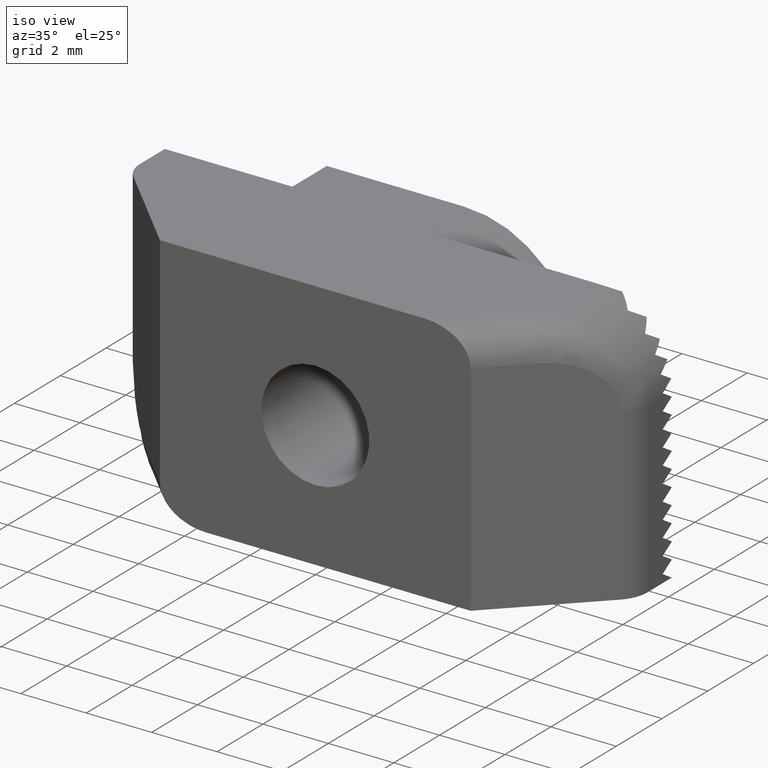
[diagram: clean part render]
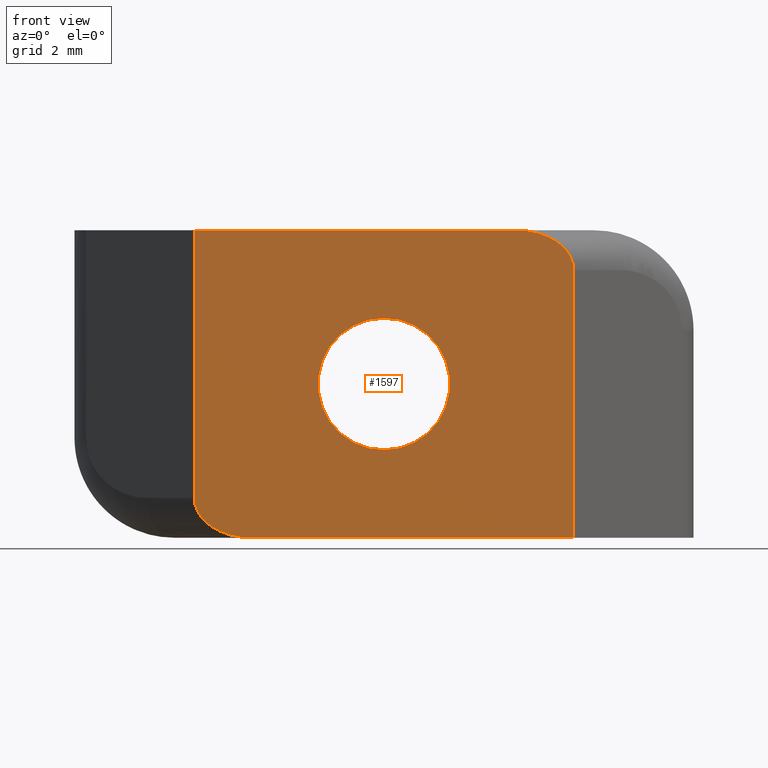
[diagram: tour spotlight — one face highlighted and labeled with its STEP entity id]
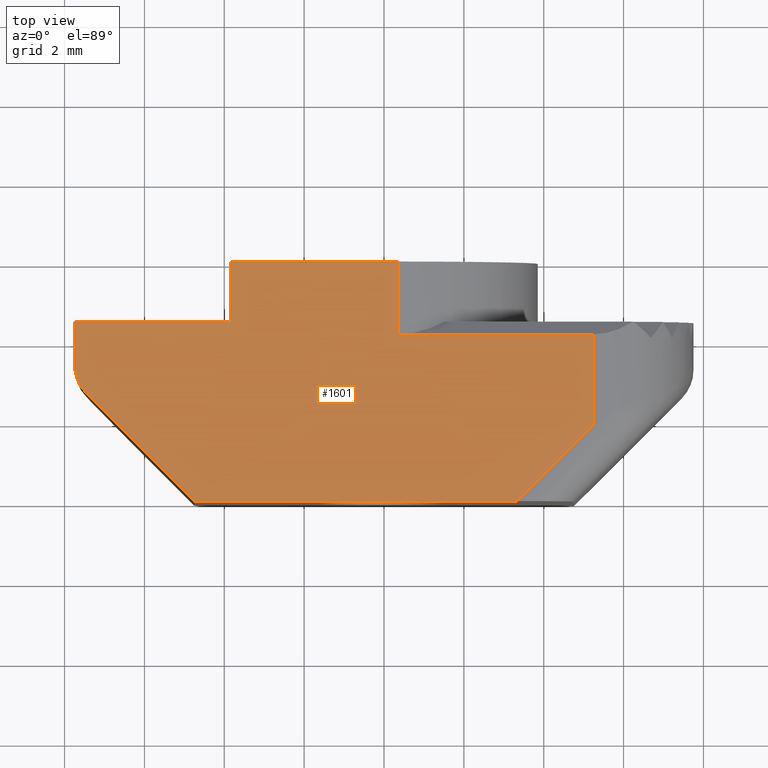
[diagram: tour spotlight — one face highlighted and labeled with its STEP entity id]
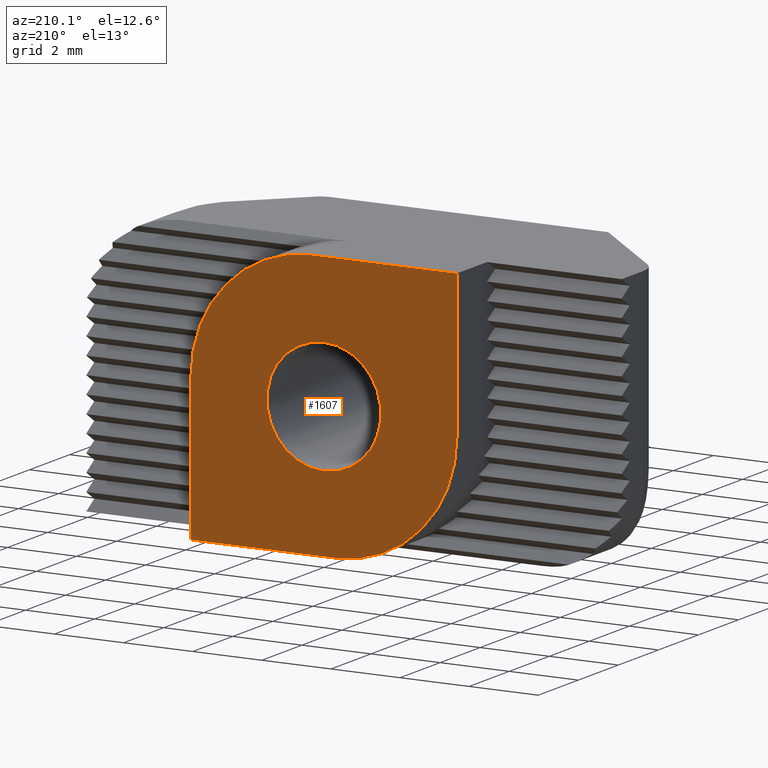
[diagram: tour spotlight — one face highlighted and labeled with its STEP entity id]
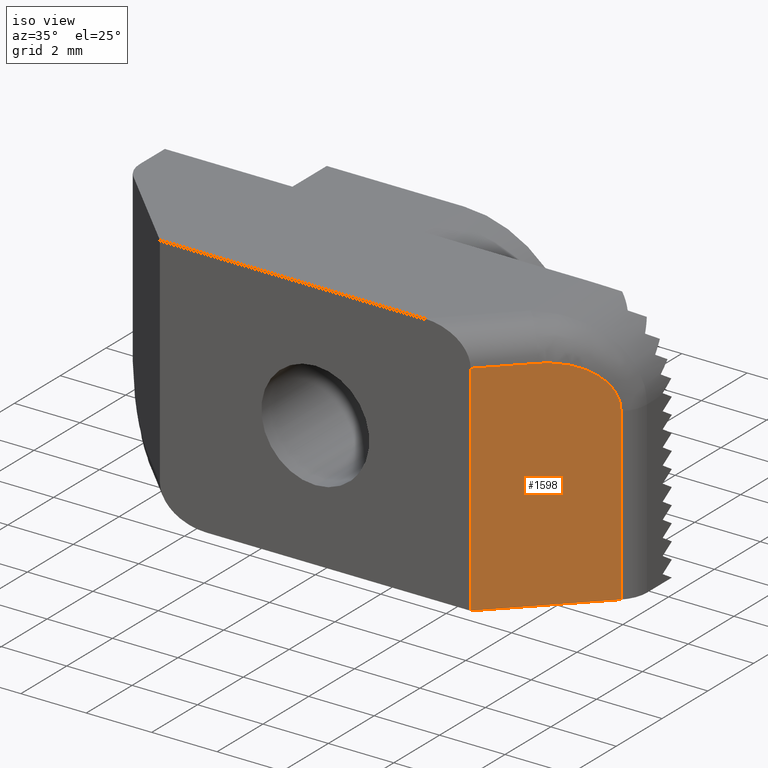
[diagram: tour spotlight — one face highlighted and labeled with its STEP entity id]
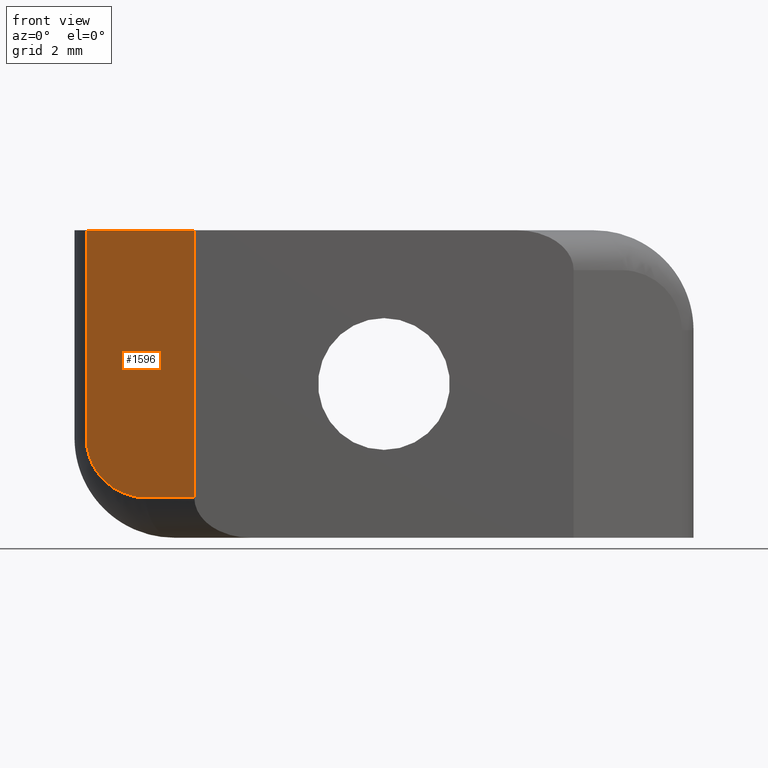
[diagram: tour spotlight — one face highlighted and labeled with its STEP entity id]
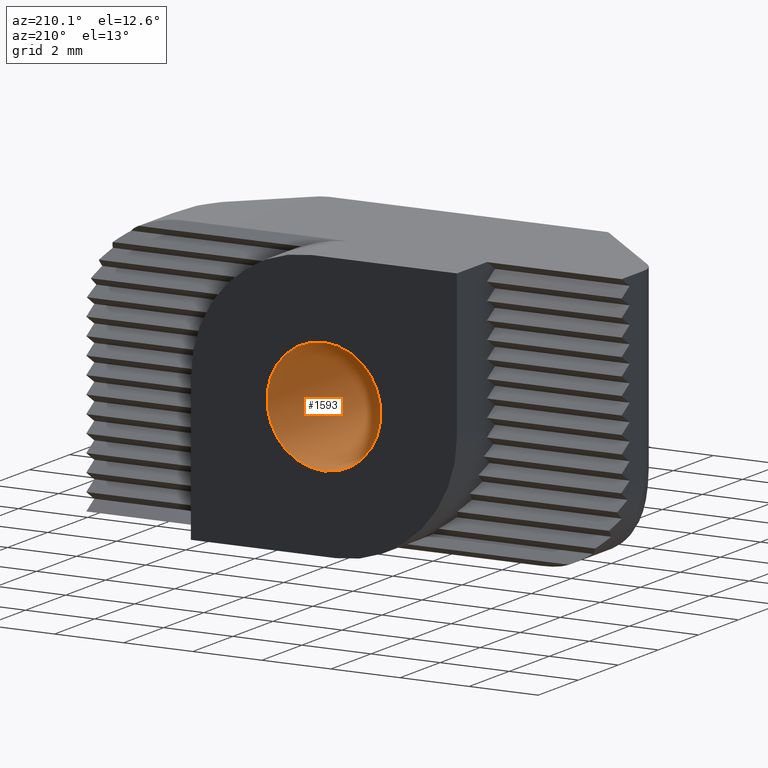
[diagram: tour spotlight — one face highlighted and labeled with its STEP entity id]
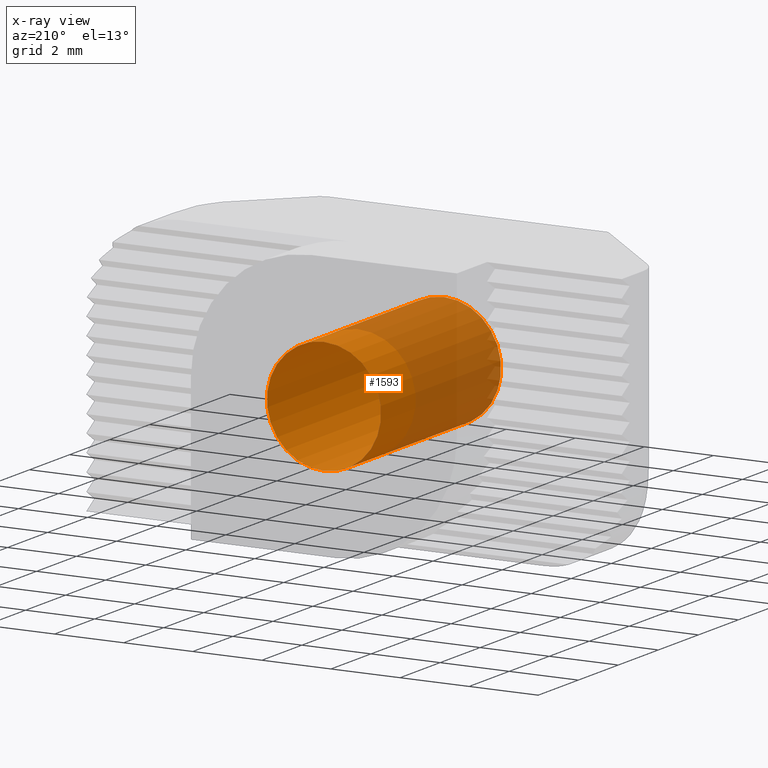
[diagram: x-ray of the same camera — body ghosted, this tour face saturated]
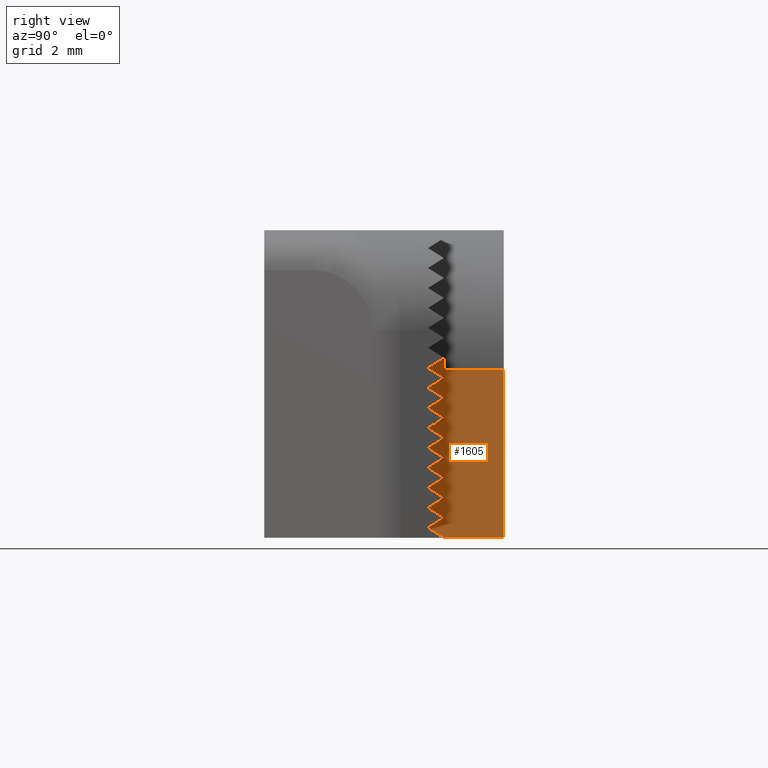
[diagram: tour spotlight — one face highlighted and labeled with its STEP entity id]
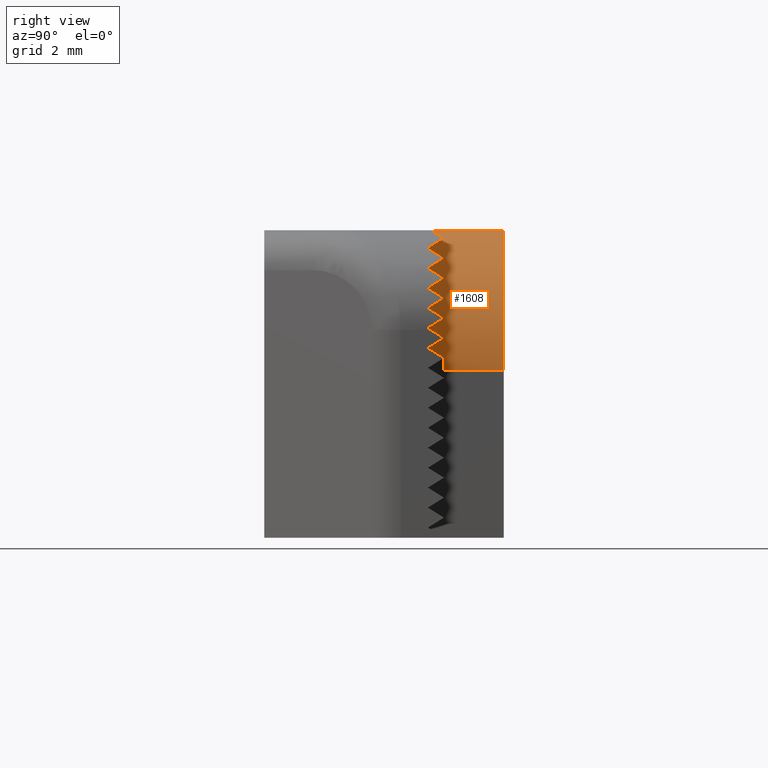
[diagram: tour spotlight — one face highlighted and labeled with its STEP entity id]
A machine part: a face-by-face anatomy tour. The part has 85 B-rep faces; the first image is the clean iso view, then the 8 largest visible faces are spotlighted one at a time (largest first), each with its STEP entity span.

Face 1 — front view, entity #1597. In plain terms, the highlighted planar face has unit normal (-0, 1, 0).
Definition (entity closure, byte-faithful):
#19=FACE_BOUND('',#237,.T.);
#21=ELLIPSE('',#1709,1.41421356237308,0.999999999999987);
#22=ELLIPSE('',#1710,1.41421356237295,0.999999999999897);
#76=PLANE('',#1708);
#151=FACE_OUTER_BOUND('',#236,.T.);
#236=EDGE_LOOP('',(#1111,#1112,#1113,#1114,#1115,#1116));
#237=EDGE_LOOP('',(#1117,#1118));
#327=LINE('',#2365,#504);
#328=LINE('',#2370,#505);
#329=LINE('',#2372,#506);
#330=LINE('',#2375,#507);
#504=VECTOR('',#1875,1000.);
#505=VECTOR('',#1880,1000.);
#506=VECTOR('',#1881,1000.);
#507=VECTOR('',#1884,1000.);
#673=CIRCLE('',#1699,1.65);
#674=CIRCLE('',#1700,1.65);
#687=VERTEX_POINT('',#2320);
#688=VERTEX_POINT('',#2321);
#698=VERTEX_POINT('',#2345);
#701=VERTEX_POINT('',#2363);
#702=VERTEX_POINT('',#2367);
#703=VERTEX_POINT('',#2369);
#704=VERTEX_POINT('',#2371);
#705=VERTEX_POINT('',#2373);
#849=EDGE_CURVE('',#687,#688,#673,.T.);
#850=EDGE_CURVE('',#688,#687,#674,.T.);
#864=EDGE_CURVE('',#698,#701,#327,.T.);
#865=EDGE_CURVE('',#701,#702,#21,.T.);
#866=EDGE_CURVE('',#702,#703,#328,.T.);
#867=EDGE_CURVE('',#704,#703,#329,.T.);
#868=EDGE_CURVE('',#704,#705,#22,.T.);
#869=EDGE_CURVE('',#698,#705,#330,.T.);
#1111=ORIENTED_EDGE('',*,*,#864,.T.);
#1112=ORIENTED_EDGE('',*,*,#865,.T.);
#1113=ORIENTED_EDGE('',*,*,#866,.T.);
#1114=ORIENTED_EDGE('',*,*,#867,.F.);
#1115=ORIENTED_EDGE('',*,*,#868,.T.);
#1116=ORIENTED_EDGE('',*,*,#869,.F.);
#1117=ORIENTED_EDGE('',*,*,#849,.T.);
#1118=ORIENTED_EDGE('',*,*,#850,.T.);
#1597=ADVANCED_FACE('',(#151,#19),#76,.F.);
#1699=AXIS2_PLACEMENT_3D('',#2322,#1849,#1850);
#1700=AXIS2_PLACEMENT_3D('',#2323,#1851,#1852);
#1708=AXIS2_PLACEMENT_3D('',#2366,#1876,#1877);
#1709=AXIS2_PLACEMENT_3D('',#2368,#1878,#1879);
#1710=AXIS2_PLACEMENT_3D('',#2374,#1882,#1883);
#1849=DIRECTION('center_axis',(0.,1.,0.));
#1850=DIRECTION('ref_axis',(0.,0.,1.));
#1851=DIRECTION('center_axis',(0.,1.,0.));
#1852=DIRECTION('ref_axis',(0.,0.,1.));
#1875=DIRECTION('',(0.,0.,-1.));
#1876=DIRECTION('center_axis',(-2.25074922955132E-48,1.,0.));
#1877=DIRECTION('ref_axis',(-1.,-2.25074922955132E-48,0.));
#1878=DIRECTION('center_axis',(5.23499117833775E-16,-1.,7.40339552330874E-16));
#1879=DIRECTION('ref_axis',(1.,5.23499117833765E-16,-1.32741586305294E-14));
#1880=DIRECTION('',(1.,2.25074922955132E-48,0.));
#1881=DIRECTION('',(0.,0.,-1.));
#1882=DIRECTION('center_axis',(-1.04699823566756E-15,-1.,-1.48067910466176E-15));
#1883=DIRECTION('ref_axis',(1.,-1.04699823566737E-15,-1.26546978944379E-13));
#1884=DIRECTION('',(1.,2.25074922955132E-48,0.));
#2320=CARTESIAN_POINT('',(-2.08500417785674E-16,0.,5.5));
#2321=CARTESIAN_POINT('',(-4.10567139644986E-16,0.,2.20000000000001));
#2322=CARTESIAN_POINT('Origin',(-2.08500417785674E-16,0.,3.85));
#2323=CARTESIAN_POINT('Origin',(-2.08500417785674E-16,0.,3.85));
#2345=CARTESIAN_POINT('',(-4.75,0.,7.7));
#2363=CARTESIAN_POINT('',(-4.75,0.,1.));
#2365=CARTESIAN_POINT('',(-4.75,0.,7.7));
#2366=CARTESIAN_POINT('Origin',(-4.75,0.,7.7));
#2367=CARTESIAN_POINT('',(-3.3357864376269,3.18304008593228E-48,0.));
#2368=CARTESIAN_POINT('Origin',(-3.33578643762692,7.40339552330858E-16,
0.999999999999987));
#2369=CARTESIAN_POINT('',(4.75,2.13821176807376E-47,0.));
#2370=CARTESIAN_POINT('',(-4.75,0.,0.));
#2371=CARTESIAN_POINT('',(4.75,2.13821176807376E-47,6.7));
#2372=CARTESIAN_POINT('',(4.75,2.13821176807376E-47,7.7));
#2373=CARTESIAN_POINT('',(3.3357864376269,1.81990775948053E-47,7.7));
#2374=CARTESIAN_POINT('Origin',(3.33578643762705,1.48067910466145E-15,6.7000000000001));
#2375=CARTESIAN_POINT('',(-4.75,0.,7.7));

Face 2 — top view, entity #1601. In plain terms, the highlighted planar face has unit normal (0, 0, 1).
Definition (entity closure, byte-faithful):
#80=PLANE('',#1714);
#155=FACE_OUTER_BOUND('',#241,.T.);
#241=EDGE_LOOP('',(#1172,#1173,#1174,#1175,#1176,#1177,#1178,#1179,#1180,
#1181,#1182));
#324=LINE('',#2346,#501);
#330=LINE('',#2375,#507);
#360=LINE('',#2452,#537);
#382=LINE('',#2497,#559);
#383=LINE('',#2499,#560);
#384=LINE('',#2501,#561);
#385=LINE('',#2503,#562);
#386=LINE('',#2505,#563);
#387=LINE('',#2507,#564);
#388=LINE('',#2508,#565);
#501=VECTOR('',#1872,1000.);
#507=VECTOR('',#1884,1000.);
#537=VECTOR('',#1920,1000.);
#559=VECTOR('',#1946,1000.);
#560=VECTOR('',#1947,1000.);
#561=VECTOR('',#1948,1000.);
#562=VECTOR('',#1949,1000.);
#563=VECTOR('',#1950,1000.);
#564=VECTOR('',#1951,1000.);
#565=VECTOR('',#1952,1000.);
#679=CIRCLE('',#1715,1.);
#697=VERTEX_POINT('',#2344);
#698=VERTEX_POINT('',#2345);
#705=VERTEX_POINT('',#2373);
#735=VERTEX_POINT('',#2449);
#736=VERTEX_POINT('',#2451);
#757=VERTEX_POINT('',#2496);
#758=VERTEX_POINT('',#2498);
#759=VERTEX_POINT('',#2500);
#760=VERTEX_POINT('',#2502);
#761=VERTEX_POINT('',#2504);
#762=VERTEX_POINT('',#2506);
#860=EDGE_CURVE('',#697,#698,#324,.T.);
#869=EDGE_CURVE('',#698,#705,#330,.T.);
#900=EDGE_CURVE('',#736,#735,#360,.T.);
#922=EDGE_CURVE('',#735,#697,#679,.T.);
#923=EDGE_CURVE('',#705,#757,#382,.T.);
#924=EDGE_CURVE('',#757,#758,#383,.T.);
#925=EDGE_CURVE('',#759,#758,#384,.T.);
#926=EDGE_CURVE('',#759,#760,#385,.T.);
#927=EDGE_CURVE('',#761,#760,#386,.T.);
#928=EDGE_CURVE('',#761,#762,#387,.T.);
#929=EDGE_CURVE('',#762,#736,#388,.T.);
#1172=ORIENTED_EDGE('',*,*,#900,.T.);
#1173=ORIENTED_EDGE('',*,*,#922,.T.);
#1174=ORIENTED_EDGE('',*,*,#860,.T.);
#1175=ORIENTED_EDGE('',*,*,#869,.T.);
#1176=ORIENTED_EDGE('',*,*,#923,.T.);
#1177=ORIENTED_EDGE('',*,*,#924,.T.);
#1178=ORIENTED_EDGE('',*,*,#925,.F.);
#1179=ORIENTED_EDGE('',*,*,#926,.T.);
#1180=ORIENTED_EDGE('',*,*,#927,.F.);
#1181=ORIENTED_EDGE('',*,*,#928,.T.);
#1182=ORIENTED_EDGE('',*,*,#929,.T.);
#1601=ADVANCED_FACE('',(#155),#80,.T.);
#1714=AXIS2_PLACEMENT_3D('',#2494,#1942,#1943);
#1715=AXIS2_PLACEMENT_3D('',#2495,#1944,#1945);
#1872=DIRECTION('',(0.707106781186548,-0.707106781186547,0.));
#1884=DIRECTION('',(1.,2.25074922955132E-48,0.));
#1920=DIRECTION('',(0.,-1.,0.));
#1942=DIRECTION('center_axis',(0.,0.,1.));
#1943=DIRECTION('ref_axis',(1.,0.,0.));
#1944=DIRECTION('center_axis',(0.,0.,1.));
#1945=DIRECTION('ref_axis',(1.,0.,0.));
#1946=DIRECTION('',(0.707106781186548,0.707106781186548,0.));
#1947=DIRECTION('',(0.,1.,0.));
#1948=DIRECTION('',(1.,0.,0.));
#1949=DIRECTION('',(0.,1.,0.));
#1950=DIRECTION('',(1.,0.,0.));
#1951=DIRECTION('',(0.,-1.,0.));
#1952=DIRECTION('',(-1.,0.,0.));
#2344=CARTESIAN_POINT('',(-7.45710678118655,2.70710678118655,7.7));
#2345=CARTESIAN_POINT('',(-4.75,0.,7.7));
#2346=CARTESIAN_POINT('',(-7.75,3.,7.7));
#2373=CARTESIAN_POINT('',(3.3357864376269,1.81990775948053E-47,7.7));
#2375=CARTESIAN_POINT('',(-4.75,0.,7.7));
#2449=CARTESIAN_POINT('',(-7.75,3.41421356237309,7.7));
#2451=CARTESIAN_POINT('',(-7.75,4.5,7.7));
#2452=CARTESIAN_POINT('',(-7.75,4.5,7.7));
#2494=CARTESIAN_POINT('Origin',(8.67361737988404E-16,-4.75,7.7));
#2495=CARTESIAN_POINT('Origin',(-6.75,3.41421356237309,7.7));
#2496=CARTESIAN_POINT('',(5.25,1.9142135623731,7.7));
#2497=CARTESIAN_POINT('',(4.54289321881345,1.20710678118655,7.7));
#2498=CARTESIAN_POINT('',(5.25,4.18,7.7));
#2499=CARTESIAN_POINT('',(5.25,4.5,7.7));
#2500=CARTESIAN_POINT('',(0.349999999999999,4.18,7.7));
#2501=CARTESIAN_POINT('',(8.67361737988404E-16,4.18,7.7));
#2502=CARTESIAN_POINT('',(0.35,6.,7.7));
#2503=CARTESIAN_POINT('',(0.349999999999999,6.,7.7));
#2504=CARTESIAN_POINT('',(-3.85,6.,7.7));
#2505=CARTESIAN_POINT('',(3.85,6.,7.7));
#2506=CARTESIAN_POINT('',(-3.85,4.5,7.7));
#2507=CARTESIAN_POINT('',(-3.85,6.,7.7));
#2508=CARTESIAN_POINT('',(7.75,4.5,7.7));

Face 3 — auxiliary view, entity #1607. In plain terms, the highlighted planar face has unit normal (0, -1, 0).
Definition (entity closure, byte-faithful):
#20=FACE_BOUND('',#248,.T.);
#84=PLANE('',#1744);
#161=FACE_OUTER_BOUND('',#247,.T.);
#247=EDGE_LOOP('',(#1266,#1267,#1268,#1269,#1270,#1271));
#248=EDGE_LOOP('',(#1272,#1273));
#386=LINE('',#2505,#563);
#393=LINE('',#2519,#570);
#396=LINE('',#2590,#573);
#416=LINE('',#2629,#593);
#563=VECTOR('',#1950,1000.);
#570=VECTOR('',#1959,1000.);
#573=VECTOR('',#2014,1000.);
#593=VECTOR('',#2036,1000.);
#675=CIRCLE('',#1701,1.64999999999999);
#676=CIRCLE('',#1702,1.64999999999999);
#681=CIRCLE('',#1745,3.5);
#682=CIRCLE('',#1746,3.5);
#689=VERTEX_POINT('',#2324);
#690=VERTEX_POINT('',#2326);
#760=VERTEX_POINT('',#2502);
#761=VERTEX_POINT('',#2504);
#766=VERTEX_POINT('',#2516);
#767=VERTEX_POINT('',#2518);
#789=VERTEX_POINT('',#2589);
#807=VERTEX_POINT('',#2628);
#852=EDGE_CURVE('',#689,#690,#675,.T.);
#853=EDGE_CURVE('',#690,#689,#676,.T.);
#927=EDGE_CURVE('',#761,#760,#386,.T.);
#934=EDGE_CURVE('',#767,#766,#393,.T.);
#962=EDGE_CURVE('',#789,#767,#396,.T.);
#982=EDGE_CURVE('',#807,#761,#416,.T.);
#1002=EDGE_CURVE('',#760,#789,#681,.T.);
#1003=EDGE_CURVE('',#766,#807,#682,.T.);
#1266=ORIENTED_EDGE('',*,*,#927,.T.);
#1267=ORIENTED_EDGE('',*,*,#1002,.T.);
#1268=ORIENTED_EDGE('',*,*,#962,.T.);
#1269=ORIENTED_EDGE('',*,*,#934,.T.);
#1270=ORIENTED_EDGE('',*,*,#1003,.T.);
#1271=ORIENTED_EDGE('',*,*,#982,.T.);
#1272=ORIENTED_EDGE('',*,*,#853,.F.);
#1273=ORIENTED_EDGE('',*,*,#852,.F.);
#1607=ADVANCED_FACE('',(#161,#20),#84,.F.);
#1701=AXIS2_PLACEMENT_3D('',#2327,#1854,#1855);
#1702=AXIS2_PLACEMENT_3D('',#2328,#1856,#1857);
#1744=AXIS2_PLACEMENT_3D('',#2666,#2056,#2057);
#1745=AXIS2_PLACEMENT_3D('',#2667,#2058,#2059);
#1746=AXIS2_PLACEMENT_3D('',#2668,#2060,#2061);
#1854=DIRECTION('center_axis',(0.,1.,0.));
#1855=DIRECTION('ref_axis',(0.,0.,1.));
#1856=DIRECTION('center_axis',(0.,1.,0.));
#1857=DIRECTION('ref_axis',(0.,0.,1.));
#1950=DIRECTION('',(1.,0.,0.));
#1959=DIRECTION('',(-1.,0.,0.));
#2014=DIRECTION('',(2.25288763113871E-16,0.,-1.));
#2036=DIRECTION('',(2.25288763113871E-16,0.,1.));
#2056=DIRECTION('center_axis',(0.,-1.,0.));
#2057=DIRECTION('ref_axis',(0.,0.,-1.));
#2058=DIRECTION('center_axis',(0.,1.,0.));
#2059=DIRECTION('ref_axis',(0.,0.,-1.));
#2060=DIRECTION('center_axis',(0.,1.,0.));
#2061=DIRECTION('ref_axis',(0.,0.,-1.));
#2324=CARTESIAN_POINT('',(-4.10567139644986E-16,6.,2.20000000000001));
#2326=CARTESIAN_POINT('',(-2.08500417785674E-16,6.,5.49999999999999));
#2327=CARTESIAN_POINT('Origin',(-2.08500417785674E-16,6.,3.85));
#2328=CARTESIAN_POINT('Origin',(-2.08500417785674E-16,6.,3.85));
#2502=CARTESIAN_POINT('',(0.35,6.,7.7));
#2504=CARTESIAN_POINT('',(-3.85,6.,7.7));
#2505=CARTESIAN_POINT('',(3.85,6.,7.7));
#2516=CARTESIAN_POINT('',(-0.349999999999998,6.,8.20513355428727E-16));
#2518=CARTESIAN_POINT('',(3.85,6.,8.20513355428727E-16));
#2519=CARTESIAN_POINT('',(3.85,6.,8.20513355428727E-16));
#2589=CARTESIAN_POINT('',(3.85,6.,4.2));
#2590=CARTESIAN_POINT('',(3.85,6.,8.20513355428727E-16));
#2628=CARTESIAN_POINT('',(-3.85,6.,3.5));
#2629=CARTESIAN_POINT('',(-3.85,6.,8.20513355428727E-16));
#2666=CARTESIAN_POINT('Origin',(3.85,6.,7.7));
#2667=CARTESIAN_POINT('Origin',(0.349999999999999,6.,4.2));
#2668=CARTESIAN_POINT('Origin',(-0.349999999999999,6.,3.5));

Face 4 — iso view, entity #1598. In plain terms, the highlighted planar face has unit normal (-0.7071, 0.7071, 0).
Definition (entity closure, byte-faithful):
#72=B_SPLINE_CURVE_WITH_KNOTS('',3,(#2382,#2383,#2384,#2385,#2386,#2387,
#2388,#2389,#2390,#2391,#2392,#2393,#2394),.UNSPECIFIED.,.F.,.F.,(4,3,3,
3,4),(3.14159265358979,3.53429173528852,3.92699081698724,4.31968989868597,
4.71238898038469),.UNSPECIFIED.);
#77=PLANE('',#1711);
#152=FACE_OUTER_BOUND('',#238,.T.);
#238=EDGE_LOOP('',(#1119,#1120,#1121,#1122,#1123));
#329=LINE('',#2372,#506);
#331=LINE('',#2378,#508);
#332=LINE('',#2380,#509);
#333=LINE('',#2395,#510);
#506=VECTOR('',#1881,1000.);
#508=VECTOR('',#1887,1000.);
#509=VECTOR('',#1888,1000.);
#510=VECTOR('',#1889,1000.);
#703=VERTEX_POINT('',#2369);
#704=VERTEX_POINT('',#2371);
#706=VERTEX_POINT('',#2377);
#707=VERTEX_POINT('',#2379);
#708=VERTEX_POINT('',#2381);
#867=EDGE_CURVE('',#704,#703,#329,.T.);
#870=EDGE_CURVE('',#703,#706,#331,.T.);
#871=EDGE_CURVE('',#706,#707,#332,.T.);
#872=EDGE_CURVE('',#707,#708,#72,.T.);
#873=EDGE_CURVE('',#708,#704,#333,.T.);
#1119=ORIENTED_EDGE('',*,*,#870,.T.);
#1120=ORIENTED_EDGE('',*,*,#871,.T.);
#1121=ORIENTED_EDGE('',*,*,#872,.T.);
#1122=ORIENTED_EDGE('',*,*,#873,.T.);
#1123=ORIENTED_EDGE('',*,*,#867,.T.);
#1598=ADVANCED_FACE('',(#152),#77,.F.);
#1711=AXIS2_PLACEMENT_3D('',#2376,#1885,#1886);
#1881=DIRECTION('',(0.,0.,-1.));
#1885=DIRECTION('center_axis',(-0.707106781186547,0.707106781186548,0.));
#1886=DIRECTION('ref_axis',(-0.707106781186548,-0.707106781186547,0.));
#1887=DIRECTION('',(0.707106781186548,0.707106781186547,0.));
#1888=DIRECTION('',(0.,0.,1.));
#1889=DIRECTION('',(-0.707106781186548,-0.707106781186547,0.));
#2369=CARTESIAN_POINT('',(4.75,2.13821176807376E-47,0.));
#2371=CARTESIAN_POINT('',(4.75,2.13821176807376E-47,6.7));
#2372=CARTESIAN_POINT('',(4.75,2.13821176807376E-47,7.7));
#2376=CARTESIAN_POINT('Origin',(4.75,2.13821176807376E-47,7.7));
#2377=CARTESIAN_POINT('',(7.45710678118655,2.70710678118655,0.));
#2378=CARTESIAN_POINT('',(4.75,2.13821176807376E-47,0.));
#2379=CARTESIAN_POINT('',(7.45710678118655,2.70710678118655,5.2));
#2380=CARTESIAN_POINT('',(7.45710678118655,2.70710678118655,7.7));
#2381=CARTESIAN_POINT('',(5.95710678118655,1.20710678118655,6.7));
#2382=CARTESIAN_POINT('Ctrl Pts',(7.45710678118655,2.70710678118655,5.2));
#2383=CARTESIAN_POINT('Ctrl Pts',(7.45710678117198,2.70710678117198,5.396384933334));
#2384=CARTESIAN_POINT('Ctrl Pts',(7.41806579133411,2.66806579133411,5.59262183825967));
#2385=CARTESIAN_POINT('Ctrl Pts',(7.34292607995348,2.59292607995348,5.77402514854764));
#2386=CARTESIAN_POINT('Ctrl Pts',(7.26778636857285,2.51778636857285,5.95542845883561));
#2387=CARTESIAN_POINT('Ctrl Pts',(7.15660703792746,2.40660703792746,6.12182008681863));
#2388=CARTESIAN_POINT('Ctrl Pts',(7.01776695296637,2.26776695296637,6.26066017177982));
#2389=CARTESIAN_POINT('Ctrl Pts',(6.87892686800528,2.12892686800528,6.39950025674101));
#2390=CARTESIAN_POINT('Ctrl Pts',(6.71253524449344,1.96253524449344,6.51067958553414));
#2391=CARTESIAN_POINT('Ctrl Pts',(6.53113192973418,1.78113192973418,6.58581929876693));
#2392=CARTESIAN_POINT('Ctrl Pts',(6.34972861497493,1.59972861497493,6.66095901199972));
#2393=CARTESIAN_POINT('Ctrl Pts',(6.15349171787875,1.40349171787875,6.69999999999506));
#2394=CARTESIAN_POINT('Ctrl Pts',(5.95710678118655,1.20710678118655,6.7));
#2395=CARTESIAN_POINT('',(4.75,5.42101086242752E-16,6.7));

Face 5 — front view, entity #1596. In plain terms, the highlighted planar face has unit normal (0.7071, 0.7071, 0).
Definition (entity closure, byte-faithful):
#71=B_SPLINE_CURVE_WITH_KNOTS('',3,(#2350,#2351,#2352,#2353,#2354,#2355,
#2356,#2357,#2358,#2359,#2360,#2361,#2362),.UNSPECIFIED.,.F.,.F.,(4,3,3,
3,4),(3.14159265358979,3.53429173528852,3.92699081698724,4.31968989868597,
4.71238898038469),.UNSPECIFIED.);
#75=PLANE('',#1707);
#150=FACE_OUTER_BOUND('',#235,.T.);
#235=EDGE_LOOP('',(#1106,#1107,#1108,#1109,#1110));
#324=LINE('',#2346,#501);
#325=LINE('',#2348,#502);
#326=LINE('',#2364,#503);
#327=LINE('',#2365,#504);
#501=VECTOR('',#1872,1000.);
#502=VECTOR('',#1873,1000.);
#503=VECTOR('',#1874,1000.);
#504=VECTOR('',#1875,1000.);
#697=VERTEX_POINT('',#2344);
#698=VERTEX_POINT('',#2345);
#699=VERTEX_POINT('',#2347);
#700=VERTEX_POINT('',#2349);
#701=VERTEX_POINT('',#2363);
#860=EDGE_CURVE('',#697,#698,#324,.T.);
#861=EDGE_CURVE('',#697,#699,#325,.T.);
#862=EDGE_CURVE('',#699,#700,#71,.T.);
#863=EDGE_CURVE('',#700,#701,#326,.T.);
#864=EDGE_CURVE('',#698,#701,#327,.T.);
#1106=ORIENTED_EDGE('',*,*,#860,.F.);
#1107=ORIENTED_EDGE('',*,*,#861,.T.);
#1108=ORIENTED_EDGE('',*,*,#862,.T.);
#1109=ORIENTED_EDGE('',*,*,#863,.T.);
#1110=ORIENTED_EDGE('',*,*,#864,.F.);
#1596=ADVANCED_FACE('',(#150),#75,.F.);
#1707=AXIS2_PLACEMENT_3D('',#2343,#1870,#1871);
#1870=DIRECTION('center_axis',(0.707106781186547,0.707106781186548,0.));
#1871=DIRECTION('ref_axis',(-0.707106781186548,0.707106781186547,0.));
#1872=DIRECTION('',(0.707106781186548,-0.707106781186547,0.));
#1873=DIRECTION('',(0.,0.,-1.));
#1874=DIRECTION('',(0.707106781186548,-0.707106781186547,0.));
#1875=DIRECTION('',(0.,0.,-1.));
#2343=CARTESIAN_POINT('Origin',(-7.75,3.,7.7));
#2344=CARTESIAN_POINT('',(-7.45710678118655,2.70710678118655,7.7));
#2345=CARTESIAN_POINT('',(-4.75,0.,7.7));
#2346=CARTESIAN_POINT('',(-7.75,3.,7.7));
#2347=CARTESIAN_POINT('',(-7.45710678118655,2.70710678118655,2.5));
#2348=CARTESIAN_POINT('',(-7.45710678118655,2.70710678118655,7.7));
#2349=CARTESIAN_POINT('',(-5.95710678118655,1.20710678118655,1.));
#2350=CARTESIAN_POINT('Ctrl Pts',(-7.45710678118655,2.70710678118655,2.5));
#2351=CARTESIAN_POINT('Ctrl Pts',(-7.45710678117207,2.70710678117207,2.30361506666605));
#2352=CARTESIAN_POINT('Ctrl Pts',(-7.41806579133411,2.66806579133411,2.10737816174027));
#2353=CARTESIAN_POINT('Ctrl Pts',(-7.34292607995348,2.59292607995348,1.92597485145236));
#2354=CARTESIAN_POINT('Ctrl Pts',(-7.26778636857285,2.51778636857285,1.74457154116446));
#2355=CARTESIAN_POINT('Ctrl Pts',(-7.15660703792751,2.40660703792751,1.57817991318132));
#2356=CARTESIAN_POINT('Ctrl Pts',(-7.01776695296637,2.26776695296637,1.43933982822018));
#2357=CARTESIAN_POINT('Ctrl Pts',(-6.87892686800523,2.12892686800523,1.30049974325904));
#2358=CARTESIAN_POINT('Ctrl Pts',(-6.71253524449344,1.96253524449344,1.18932041446578));
#2359=CARTESIAN_POINT('Ctrl Pts',(-6.53113192973418,1.78113192973418,1.11418070123307));
#2360=CARTESIAN_POINT('Ctrl Pts',(-6.34972861497493,1.59972861497493,1.03904098800036));
#2361=CARTESIAN_POINT('Ctrl Pts',(-6.15349171787875,1.40349171787875,1.00000000000512));
#2362=CARTESIAN_POINT('Ctrl Pts',(-5.95710678118655,1.20710678118655,1.));
#2363=CARTESIAN_POINT('',(-4.75,0.,1.));
#2364=CARTESIAN_POINT('',(-7.75,3.,1.));
#2365=CARTESIAN_POINT('',(-4.75,0.,7.7));

Face 6 — auxiliary view, entity #1593. An x-ray twin of the same camera follows (body ghosted, this face saturated) — the face is partly hidden behind the body. In plain terms, the highlighted cylindrical surface (bore or boss wall) has radius 1.65 mm, axis along (0, 1, 0).
Definition (entity closure, byte-faithful):
#147=FACE_OUTER_BOUND('',#232,.T.);
#232=EDGE_LOOP('',(#1094,#1095,#1096,#1097,#1098,#1099));
#319=LINE('',#2325,#496);
#496=VECTOR('',#1853,1.64999999999999);
#673=CIRCLE('',#1699,1.65);
#674=CIRCLE('',#1700,1.65);
#675=CIRCLE('',#1701,1.64999999999999);
#676=CIRCLE('',#1702,1.64999999999999);
#687=VERTEX_POINT('',#2320);
#688=VERTEX_POINT('',#2321);
#689=VERTEX_POINT('',#2324);
#690=VERTEX_POINT('',#2326);
#849=EDGE_CURVE('',#687,#688,#673,.T.);
#850=EDGE_CURVE('',#688,#687,#674,.T.);
#851=EDGE_CURVE('',#688,#689,#319,.T.);
#852=EDGE_CURVE('',#689,#690,#675,.T.);
#853=EDGE_CURVE('',#690,#689,#676,.T.);
#1094=ORIENTED_EDGE('',*,*,#849,.F.);
#1095=ORIENTED_EDGE('',*,*,#850,.F.);
#1096=ORIENTED_EDGE('',*,*,#851,.T.);
#1097=ORIENTED_EDGE('',*,*,#852,.T.);
#1098=ORIENTED_EDGE('',*,*,#853,.T.);
#1099=ORIENTED_EDGE('',*,*,#851,.F.);
#1584=CYLINDRICAL_SURFACE('',#1698,1.64999999999999);
#1593=ADVANCED_FACE('',(#147),#1584,.F.);
#1698=AXIS2_PLACEMENT_3D('',#2319,#1847,#1848);
#1699=AXIS2_PLACEMENT_3D('',#2322,#1849,#1850);
#1700=AXIS2_PLACEMENT_3D('',#2323,#1851,#1852);
#1701=AXIS2_PLACEMENT_3D('',#2327,#1854,#1855);
#1702=AXIS2_PLACEMENT_3D('',#2328,#1856,#1857);
#1847=DIRECTION('center_axis',(0.,1.,0.));
#1848=DIRECTION('ref_axis',(0.,0.,1.));
#1849=DIRECTION('center_axis',(0.,1.,0.));
#1850=DIRECTION('ref_axis',(0.,0.,1.));
#1851=DIRECTION('center_axis',(0.,1.,0.));
#1852=DIRECTION('ref_axis',(0.,0.,1.));
#1853=DIRECTION('',(0.,1.,0.));
#1854=DIRECTION('center_axis',(0.,1.,0.));
#1855=DIRECTION('ref_axis',(0.,0.,1.));
#1856=DIRECTION('center_axis',(0.,1.,0.));
#1857=DIRECTION('ref_axis',(0.,0.,1.));
#2319=CARTESIAN_POINT('Origin',(-2.08500417785674E-16,6.,3.85));
#2320=CARTESIAN_POINT('',(-2.08500417785674E-16,0.,5.5));
#2321=CARTESIAN_POINT('',(-4.10567139644986E-16,0.,2.20000000000001));
#2322=CARTESIAN_POINT('Origin',(-2.08500417785674E-16,0.,3.85));
#2323=CARTESIAN_POINT('Origin',(-2.08500417785674E-16,0.,3.85));
#2324=CARTESIAN_POINT('',(-4.10567139644986E-16,6.,2.20000000000001));
#2325=CARTESIAN_POINT('',(-4.10567139644986E-16,6.,2.20000000000001));
#2326=CARTESIAN_POINT('',(-2.08500417785674E-16,6.,5.49999999999999));
#2327=CARTESIAN_POINT('Origin',(-2.08500417785674E-16,6.,3.85));
#2328=CARTESIAN_POINT('Origin',(-2.08500417785674E-16,6.,3.85));

Face 7 — right view, entity #1605. In plain terms, the highlighted planar face has unit normal (-1, 0, -0).
Definition (entity closure, byte-faithful):
#82=PLANE('',#1742);
#159=FACE_OUTER_BOUND('',#245,.T.);
#245=EDGE_LOOP('',(#1222,#1223,#1224,#1225,#1226,#1227,#1228,#1229,#1230,
#1231,#1232,#1233,#1234,#1235,#1236,#1237,#1238,#1239,#1240,#1241,#1242,
#1243));
#323=LINE('',#2342,#500);
#394=LINE('',#2521,#571);
#396=LINE('',#2590,#573);
#397=LINE('',#2591,#574);
#398=LINE('',#2593,#575);
#399=LINE('',#2595,#576);
#400=LINE('',#2597,#577);
#401=LINE('',#2599,#578);
#402=LINE('',#2601,#579);
#403=LINE('',#2603,#580);
#404=LINE('',#2605,#581);
#405=LINE('',#2607,#582);
#406=LINE('',#2609,#583);
#407=LINE('',#2611,#584);
#408=LINE('',#2613,#585);
#409=LINE('',#2615,#586);
#410=LINE('',#2617,#587);
#411=LINE('',#2619,#588);
#412=LINE('',#2621,#589);
#413=LINE('',#2623,#590);
#414=LINE('',#2625,#591);
#415=LINE('',#2626,#592);
#500=VECTOR('',#1869,1000.);
#571=VECTOR('',#1960,1000.);
#573=VECTOR('',#2014,1000.);
#574=VECTOR('',#2015,1000.);
#575=VECTOR('',#2016,1000.);
#576=VECTOR('',#2017,1000.);
#577=VECTOR('',#2018,1000.);
#578=VECTOR('',#2019,1000.);
#579=VECTOR('',#2020,1000.);
#580=VECTOR('',#2021,1000.);
#581=VECTOR('',#2022,1000.);
#582=VECTOR('',#2023,1000.);
#583=VECTOR('',#2024,1000.);
#584=VECTOR('',#2025,1000.);
#585=VECTOR('',#2026,1000.);
#586=VECTOR('',#2027,1000.);
#587=VECTOR('',#2028,1000.);
#588=VECTOR('',#2029,1000.);
#589=VECTOR('',#2030,1000.);
#590=VECTOR('',#2031,1000.);
#591=VECTOR('',#2032,1000.);
#592=VECTOR('',#2033,1000.);
#694=VERTEX_POINT('',#2337);
#696=VERTEX_POINT('',#2340);
#767=VERTEX_POINT('',#2518);
#768=VERTEX_POINT('',#2520);
#789=VERTEX_POINT('',#2589);
#790=VERTEX_POINT('',#2592);
#791=VERTEX_POINT('',#2594);
#792=VERTEX_POINT('',#2596);
#793=VERTEX_POINT('',#2598);
#794=VERTEX_POINT('',#2600);
#795=VERTEX_POINT('',#2602);
#796=VERTEX_POINT('',#2604);
#797=VERTEX_POINT('',#2606);
#798=VERTEX_POINT('',#2608);
#799=VERTEX_POINT('',#2610);
#800=VERTEX_POINT('',#2612);
#801=VERTEX_POINT('',#2614);
#802=VERTEX_POINT('',#2616);
#803=VERTEX_POINT('',#2618);
#804=VERTEX_POINT('',#2620);
#805=VERTEX_POINT('',#2622);
#806=VERTEX_POINT('',#2624);
#859=EDGE_CURVE('',#694,#696,#323,.T.);
#935=EDGE_CURVE('',#767,#768,#394,.T.);
#962=EDGE_CURVE('',#789,#767,#396,.T.);
#963=EDGE_CURVE('',#789,#694,#397,.T.);
#964=EDGE_CURVE('',#696,#790,#398,.T.);
#965=EDGE_CURVE('',#790,#791,#399,.T.);
#966=EDGE_CURVE('',#791,#792,#400,.T.);
#967=EDGE_CURVE('',#792,#793,#401,.T.);
#968=EDGE_CURVE('',#793,#794,#402,.T.);
#969=EDGE_CURVE('',#794,#795,#403,.T.);
#970=EDGE_CURVE('',#795,#796,#404,.T.);
#971=EDGE_CURVE('',#796,#797,#405,.T.);
#972=EDGE_CURVE('',#797,#798,#406,.T.);
#973=EDGE_CURVE('',#798,#799,#407,.T.);
#974=EDGE_CURVE('',#799,#800,#408,.T.);
#975=EDGE_CURVE('',#800,#801,#409,.T.);
#976=EDGE_CURVE('',#801,#802,#410,.T.);
#977=EDGE_CURVE('',#802,#803,#411,.T.);
#978=EDGE_CURVE('',#803,#804,#412,.T.);
#979=EDGE_CURVE('',#804,#805,#413,.T.);
#980=EDGE_CURVE('',#805,#806,#414,.T.);
#981=EDGE_CURVE('',#806,#768,#415,.T.);
#1222=ORIENTED_EDGE('',*,*,#962,.F.);
#1223=ORIENTED_EDGE('',*,*,#963,.T.);
#1224=ORIENTED_EDGE('',*,*,#859,.T.);
#1225=ORIENTED_EDGE('',*,*,#964,.T.);
#1226=ORIENTED_EDGE('',*,*,#965,.T.);
#1227=ORIENTED_EDGE('',*,*,#966,.T.);
#1228=ORIENTED_EDGE('',*,*,#967,.T.);
#1229=ORIENTED_EDGE('',*,*,#968,.T.);
#1230=ORIENTED_EDGE('',*,*,#969,.T.);
#1231=ORIENTED_EDGE('',*,*,#970,.T.);
#1232=ORIENTED_EDGE('',*,*,#971,.T.);
#1233=ORIENTED_EDGE('',*,*,#972,.T.);
#1234=ORIENTED_EDGE('',*,*,#973,.T.);
#1235=ORIENTED_EDGE('',*,*,#974,.T.);
#1236=ORIENTED_EDGE('',*,*,#975,.T.);
#1237=ORIENTED_EDGE('',*,*,#976,.T.);
#1238=ORIENTED_EDGE('',*,*,#977,.T.);
#1239=ORIENTED_EDGE('',*,*,#978,.T.);
#1240=ORIENTED_EDGE('',*,*,#979,.T.);
#1241=ORIENTED_EDGE('',*,*,#980,.T.);
#1242=ORIENTED_EDGE('',*,*,#981,.T.);
#1243=ORIENTED_EDGE('',*,*,#935,.F.);
#1605=ADVANCED_FACE('',(#159),#82,.F.);
#1742=AXIS2_PLACEMENT_3D('',#2588,#2012,#2013);
#1869=DIRECTION('',(0.,0.,1.));
#1960=DIRECTION('',(0.,-1.,0.));
#2012=DIRECTION('center_axis',(-1.,0.,-2.25288763113871E-16));
#2013=DIRECTION('ref_axis',(-2.25288763113871E-16,0.,1.));
#2014=DIRECTION('',(2.25288763113871E-16,0.,-1.));
#2015=DIRECTION('',(0.,-1.,0.));
#2016=DIRECTION('',(0.,-0.847998304005088,-0.52999894000318));
#2017=DIRECTION('',(0.,0.847998304005088,-0.52999894000318));
#2018=DIRECTION('',(0.,-0.847998304005088,-0.52999894000318));
#2019=DIRECTION('',(0.,0.847998304005088,-0.52999894000318));
#2020=DIRECTION('',(0.,-0.847998304005088,-0.52999894000318));
#2021=DIRECTION('',(0.,0.847998304005088,-0.52999894000318));
#2022=DIRECTION('',(0.,-0.847998304005088,-0.52999894000318));
#2023=DIRECTION('',(0.,0.847998304005088,-0.52999894000318));
#2024=DIRECTION('',(0.,-0.847998304005088,-0.52999894000318));
#2025=DIRECTION('',(0.,0.847998304005088,-0.52999894000318));
#2026=DIRECTION('',(0.,-0.847998304005088,-0.52999894000318));
#2027=DIRECTION('',(0.,0.847998304005088,-0.52999894000318));
#2028=DIRECTION('',(0.,-0.847998304005088,-0.52999894000318));
#2029=DIRECTION('',(0.,0.847998304005088,-0.52999894000318));
#2030=DIRECTION('',(0.,-0.847998304005088,-0.52999894000318));
#2031=DIRECTION('',(0.,0.847998304005088,-0.52999894000318));
#2032=DIRECTION('',(0.,-0.847998304005088,-0.52999894000318));
#2033=DIRECTION('',(0.,0.847998304005088,-0.52999894000318));
#2337=CARTESIAN_POINT('',(3.85,4.5,4.2));
#2340=CARTESIAN_POINT('',(3.85,4.5,4.5));
#2342=CARTESIAN_POINT('',(3.85,4.5,4.5));
#2518=CARTESIAN_POINT('',(3.85,6.,8.20513355428727E-16));
#2520=CARTESIAN_POINT('',(3.85,4.5,0.));
#2521=CARTESIAN_POINT('',(3.85,6.,8.20513355428727E-16));
#2588=CARTESIAN_POINT('Origin',(3.85,6.,8.20513355428727E-16));
#2589=CARTESIAN_POINT('',(3.85,6.,4.2));
#2590=CARTESIAN_POINT('',(3.85,6.,8.20513355428727E-16));
#2591=CARTESIAN_POINT('',(3.85,4.5,4.2));
#2592=CARTESIAN_POINT('',(3.85,4.1,4.25));
#2593=CARTESIAN_POINT('',(3.85,4.1,4.25));
#2594=CARTESIAN_POINT('',(3.85,4.5,4.));
#2595=CARTESIAN_POINT('',(3.85,4.5,4.));
#2596=CARTESIAN_POINT('',(3.85,4.1,3.75));
#2597=CARTESIAN_POINT('',(3.85,4.1,3.75));
#2598=CARTESIAN_POINT('',(3.85,4.5,3.5));
#2599=CARTESIAN_POINT('',(3.85,4.5,3.5));
#2600=CARTESIAN_POINT('',(3.85,4.1,3.25));
#2601=CARTESIAN_POINT('',(3.85,4.1,3.25));
#2602=CARTESIAN_POINT('',(3.85,4.5,3.));
#2603=CARTESIAN_POINT('',(3.85,4.5,3.));
#2604=CARTESIAN_POINT('',(3.85,4.1,2.75));
#2605=CARTESIAN_POINT('',(3.85,4.1,2.75));
#2606=CARTESIAN_POINT('',(3.85,4.5,2.5));
#2607=CARTESIAN_POINT('',(3.85,4.5,2.5));
#2608=CARTESIAN_POINT('',(3.85,4.1,2.25));
#2609=CARTESIAN_POINT('',(3.85,4.1,2.25));
#2610=CARTESIAN_POINT('',(3.85,4.5,2.));
#2611=CARTESIAN_POINT('',(3.85,4.5,2.));
#2612=CARTESIAN_POINT('',(3.85,4.1,1.75));
#2613=CARTESIAN_POINT('',(3.85,4.1,1.75));
#2614=CARTESIAN_POINT('',(3.85,4.5,1.5));
#2615=CARTESIAN_POINT('',(3.85,4.5,1.5));
#2616=CARTESIAN_POINT('',(3.85,4.1,1.25));
#2617=CARTESIAN_POINT('',(3.85,4.1,1.25));
#2618=CARTESIAN_POINT('',(3.85,4.5,1.));
#2619=CARTESIAN_POINT('',(3.85,4.5,1.));
#2620=CARTESIAN_POINT('',(3.85,4.1,0.75));
#2621=CARTESIAN_POINT('',(3.85,4.1,0.75));
#2622=CARTESIAN_POINT('',(3.85,4.5,0.5));
#2623=CARTESIAN_POINT('',(3.85,4.5,0.5));
#2624=CARTESIAN_POINT('',(3.85,4.1,0.25));
#2625=CARTESIAN_POINT('',(3.85,4.1,0.25));
#2626=CARTESIAN_POINT('',(3.85,4.5,0.));

Face 8 — right view, entity #1608. In plain terms, the highlighted cylindrical surface (partial cylindrical patch) has radius 3.5 mm, axis along (0, 1, 0).
Definition (entity closure, byte-faithful):
#45=ELLIPSE('',#1748,6.60378679240909,3.49999999999158);
#46=ELLIPSE('',#1749,6.60378679233902,3.49999999996674);
#47=ELLIPSE('',#1750,6.60378679231591,3.49999999994787);
#48=ELLIPSE('',#1751,6.60378678885363,3.49999999831092);
#49=ELLIPSE('',#1752,6.60378678748346,3.49999999730151);
#50=ELLIPSE('',#1753,6.60378679658984,3.50000000249959);
#51=ELLIPSE('',#1754,6.60378677672187,3.49999998916004);
#52=ELLIPSE('',#1755,6.6037867726622,3.499999984909);
#53=ELLIPSE('',#1756,6.6037868125154,3.5000000167485);
#54=ELLIPSE('',#1757,6.60378679243962,3.5);
#55=ELLIPSE('',#1758,6.60378679243962,3.5);
#56=ELLIPSE('',#1759,6.60378679243962,3.5);
#57=ELLIPSE('',#1760,6.60378679243962,3.5);
#162=FACE_OUTER_BOUND('',#249,.T.);
#249=EDGE_LOOP('',(#1274,#1275,#1276,#1277,#1278,#1279,#1280,#1281,#1282,
#1283,#1284,#1285,#1286,#1287,#1288,#1289,#1290));
#385=LINE('',#2503,#562);
#397=LINE('',#2591,#574);
#562=VECTOR('',#1949,1000.);
#574=VECTOR('',#2015,1000.);
#678=CIRCLE('',#1706,3.5);
#681=CIRCLE('',#1745,3.5);
#694=VERTEX_POINT('',#2337);
#695=VERTEX_POINT('',#2338);
#759=VERTEX_POINT('',#2500);
#760=VERTEX_POINT('',#2502);
#789=VERTEX_POINT('',#2589);
#825=VERTEX_POINT('',#2670);
#826=VERTEX_POINT('',#2672);
#827=VERTEX_POINT('',#2674);
#828=VERTEX_POINT('',#2676);
#829=VERTEX_POINT('',#2678);
#830=VERTEX_POINT('',#2680);
#831=VERTEX_POINT('',#2682);
#832=VERTEX_POINT('',#2684);
#833=VERTEX_POINT('',#2686);
#834=VERTEX_POINT('',#2688);
#835=VERTEX_POINT('',#2690);
#836=VERTEX_POINT('',#2692);
#857=EDGE_CURVE('',#694,#695,#678,.T.);
#926=EDGE_CURVE('',#759,#760,#385,.T.);
#963=EDGE_CURVE('',#789,#694,#397,.T.);
#1002=EDGE_CURVE('',#760,#789,#681,.T.);
#1004=EDGE_CURVE('',#825,#759,#45,.T.);
#1005=EDGE_CURVE('',#826,#825,#46,.T.);
#1006=EDGE_CURVE('',#827,#826,#47,.T.);
#1007=EDGE_CURVE('',#828,#827,#48,.T.);
#1008=EDGE_CURVE('',#829,#828,#49,.T.);
#1009=EDGE_CURVE('',#830,#829,#50,.T.);
#1010=EDGE_CURVE('',#831,#830,#51,.T.);
#1011=EDGE_CURVE('',#832,#831,#52,.T.);
#1012=EDGE_CURVE('',#833,#832,#53,.T.);
#1013=EDGE_CURVE('',#834,#833,#54,.T.);
#1014=EDGE_CURVE('',#835,#834,#55,.T.);
#1015=EDGE_CURVE('',#836,#835,#56,.T.);
#1016=EDGE_CURVE('',#695,#836,#57,.T.);
#1274=ORIENTED_EDGE('',*,*,#1002,.F.);
#1275=ORIENTED_EDGE('',*,*,#926,.F.);
#1276=ORIENTED_EDGE('',*,*,#1004,.F.);
#1277=ORIENTED_EDGE('',*,*,#1005,.F.);
#1278=ORIENTED_EDGE('',*,*,#1006,.F.);
#1279=ORIENTED_EDGE('',*,*,#1007,.F.);
#1280=ORIENTED_EDGE('',*,*,#1008,.F.);
#1281=ORIENTED_EDGE('',*,*,#1009,.F.);
#1282=ORIENTED_EDGE('',*,*,#1010,.F.);
#1283=ORIENTED_EDGE('',*,*,#1011,.F.);
#1284=ORIENTED_EDGE('',*,*,#1012,.F.);
#1285=ORIENTED_EDGE('',*,*,#1013,.F.);
#1286=ORIENTED_EDGE('',*,*,#1014,.F.);
#1287=ORIENTED_EDGE('',*,*,#1015,.F.);
#1288=ORIENTED_EDGE('',*,*,#1016,.F.);
#1289=ORIENTED_EDGE('',*,*,#857,.F.);
#1290=ORIENTED_EDGE('',*,*,#963,.F.);
#1587=CYLINDRICAL_SURFACE('',#1747,3.5);
#1608=ADVANCED_FACE('',(#162),#1587,.T.);
#1706=AXIS2_PLACEMENT_3D('',#2339,#1866,#1867);
#1745=AXIS2_PLACEMENT_3D('',#2667,#2058,#2059);
#1747=AXIS2_PLACEMENT_3D('',#2669,#2062,#2063);
#1748=AXIS2_PLACEMENT_3D('',#2671,#2064,#2065);
#1749=AXIS2_PLACEMENT_3D('',#2673,#2066,#2067);
#1750=AXIS2_PLACEMENT_3D('',#2675,#2068,#2069);
#1751=AXIS2_PLACEMENT_3D('',#2677,#2070,#2071);
#1752=AXIS2_PLACEMENT_3D('',#2679,#2072,#2073);
#1753=AXIS2_PLACEMENT_3D('',#2681,#2074,#2075);
#1754=AXIS2_PLACEMENT_3D('',#2683,#2076,#2077);
#1755=AXIS2_PLACEMENT_3D('',#2685,#2078,#2079);
#1756=AXIS2_PLACEMENT_3D('',#2687,#2080,#2081);
#1757=AXIS2_PLACEMENT_3D('',#2689,#2082,#2083);
#1758=AXIS2_PLACEMENT_3D('',#2691,#2084,#2085);
#1759=AXIS2_PLACEMENT_3D('',#2693,#2086,#2087);
#1760=AXIS2_PLACEMENT_3D('',#2694,#2088,#2089);
#1866=DIRECTION('center_axis',(0.,-1.,0.));
#1867=DIRECTION('ref_axis',(0.,0.,-1.));
#1949=DIRECTION('',(0.,1.,0.));
#2015=DIRECTION('',(0.,-1.,0.));
#2058=DIRECTION('center_axis',(0.,1.,0.));
#2059=DIRECTION('ref_axis',(0.,0.,-1.));
#2062=DIRECTION('center_axis',(0.,1.,0.));
#2063=DIRECTION('ref_axis',(0.,0.,1.));
#2064=DIRECTION('center_axis',(-1.32381160578588E-14,-0.529998940003145,
-0.84799830400511));
#2065=DIRECTION('ref_axis',(5.86848182218944E-13,0.84799830400511,-0.529998940003145));
#2066=DIRECTION('center_axis',(1.8533257582232E-14,-0.529998940003162,0.847998304005099));
#2067=DIRECTION('ref_axis',(4.27703659189114E-12,-0.847998304005099,-0.529998940003162));
#2068=DIRECTION('center_axis',(9.46479017415758E-14,-0.529998940003244,
-0.847998304005048));
#2069=DIRECTION('ref_axis',(7.66850432278916E-12,0.847998304005048,-0.529998940003244));
#2070=DIRECTION('center_axis',(4.6473071447349E-14,-0.529998940003152,0.847998304005106));
#2071=DIRECTION('ref_axis',(2.48208453150692E-10,-0.847998304005106,-0.529998940003152));
#2072=DIRECTION('center_axis',(-8.79723873800472E-14,-0.529998940003142,
-0.847998304005112));
#2073=DIRECTION('ref_axis',(3.73678185040843E-10,0.847998304005112,-0.529998940003142));
#2074=DIRECTION('center_axis',(3.92387220137732E-13,-0.529998940003041,
0.847998304005175));
#2075=DIRECTION('ref_axis',(-3.24274042358453E-10,-0.847998304005175,-0.529998940003041));
#2076=DIRECTION('center_axis',(1.19693850490387E-13,-0.529998940003214,
-0.847998304005067));
#2077=DIRECTION('ref_axis',(1.23807732490349E-9,0.847998304005067,-0.529998940003214));
#2078=DIRECTION('center_axis',(3.7744349812829E-13,-0.52999894000309,0.847998304005144));
#2079=DIRECTION('ref_axis',(1.51095208472337E-9,-0.847998304005144,-0.52999894000309));
#2080=DIRECTION('center_axis',(5.47184525584291E-14,-0.529998940003192,
-0.847998304005081));
#2081=DIRECTION('ref_axis',(-1.43106015264069E-9,0.847998304005081,-0.529998940003192));
#2082=DIRECTION('center_axis',(0.,-0.52999894000318,0.847998304005088));
#2083=DIRECTION('ref_axis',(0.,0.847998304005088,0.52999894000318));
#2084=DIRECTION('center_axis',(0.,-0.52999894000318,-0.847998304005088));
#2085=DIRECTION('ref_axis',(0.,-0.847998304005088,0.52999894000318));
#2086=DIRECTION('center_axis',(0.,-0.52999894000318,0.847998304005088));
#2087=DIRECTION('ref_axis',(0.,0.847998304005088,0.52999894000318));
#2088=DIRECTION('center_axis',(0.,-0.52999894000318,-0.847998304005088));
#2089=DIRECTION('ref_axis',(0.,-0.847998304005088,0.52999894000318));
#2337=CARTESIAN_POINT('',(3.85,4.5,4.2));
#2338=CARTESIAN_POINT('',(3.83711915483254,4.5,4.5));
#2339=CARTESIAN_POINT('Origin',(0.349999999999999,4.5,4.2));
#2500=CARTESIAN_POINT('',(0.349999999999999,4.18,7.7));
#2502=CARTESIAN_POINT('',(0.35,6.,7.7));
#2503=CARTESIAN_POINT('',(0.349999999999999,6.,7.7));
#2589=CARTESIAN_POINT('',(3.85,6.,4.2));
#2591=CARTESIAN_POINT('',(3.85,4.5,4.2));
#2667=CARTESIAN_POINT('Origin',(0.349999999999999,6.,4.2));
#2669=CARTESIAN_POINT('Origin',(0.349999999999999,6.,4.2));
#2670=CARTESIAN_POINT('',(1.51619037896906,4.5,7.5));
#2671=CARTESIAN_POINT('Origin',(0.350000000002819,9.77999999997425,4.20000000001641));
#2672=CARTESIAN_POINT('',(2.06682847133894,4.1,7.25));
#2673=CARTESIAN_POINT('Origin',(0.3500000000222,-0.7799999999151,4.20000000005324));
#2674=CARTESIAN_POINT('',(2.45,4.5,7.));
#2675=CARTESIAN_POINT('Origin',(0.350000000044723,8.97999999989694,4.20000000006371));
#2676=CARTESIAN_POINT('',(2.74739441894737,4.1,6.75));
#2677=CARTESIAN_POINT('Origin',(0.350000001535812,0.0200000029372954,4.20000000183613));
#2678=CARTESIAN_POINT('',(2.98818119165458,4.5,6.5));
#2679=CARTESIAN_POINT('Origin',(0.350000002560854,8.17999999606512,4.2000000024598));
#2680=CARTESIAN_POINT('',(3.18681159050085,4.1,6.25));
#2681=CARTESIAN_POINT('Origin',(0.349999997581289,0.819999996810299,4.1999999980085));
#2682=CARTESIAN_POINT('',(3.35166620396072,4.5,6.));
#2683=CARTESIAN_POINT('Origin',(0.350000010665342,7.37999998872954,4.20000000704345));
#2684=CARTESIAN_POINT('',(3.48807265690264,4.1,5.75));
#2685=CARTESIAN_POINT('Origin',(0.350000014963959,1.62000001307612,4.20000000817434));
#2686=CARTESIAN_POINT('',(3.59961536185438,4.5,5.5));
#2687=CARTESIAN_POINT('Origin',(0.349999983319043,6.58000001189665,4.19999999256435));
#2688=CARTESIAN_POINT('',(3.68878720495931,4.1,5.25));
#2689=CARTESIAN_POINT('Origin',(0.349999999999999,2.42,4.2));
#2690=CARTESIAN_POINT('',(3.75734500748016,4.5,5.));
#2691=CARTESIAN_POINT('Origin',(0.349999999999999,5.78,4.2));
#2692=CARTESIAN_POINT('',(3.80651558654087,4.1,4.75));
#2693=CARTESIAN_POINT('Origin',(0.349999999999999,3.22,4.2));
#2694=CARTESIAN_POINT('Origin',(0.349999999999999,4.98,4.2));